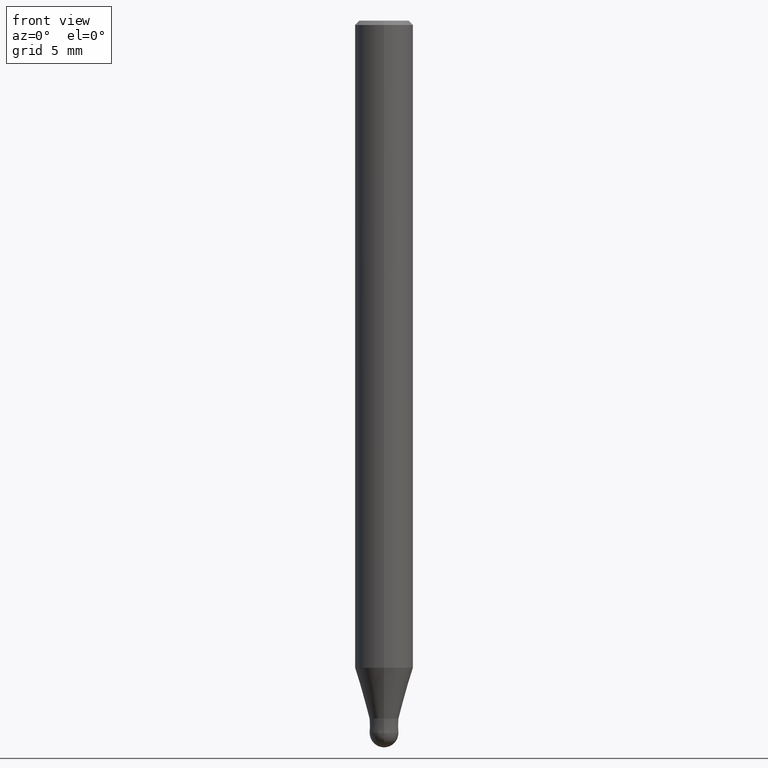
[diagram: clean part render]
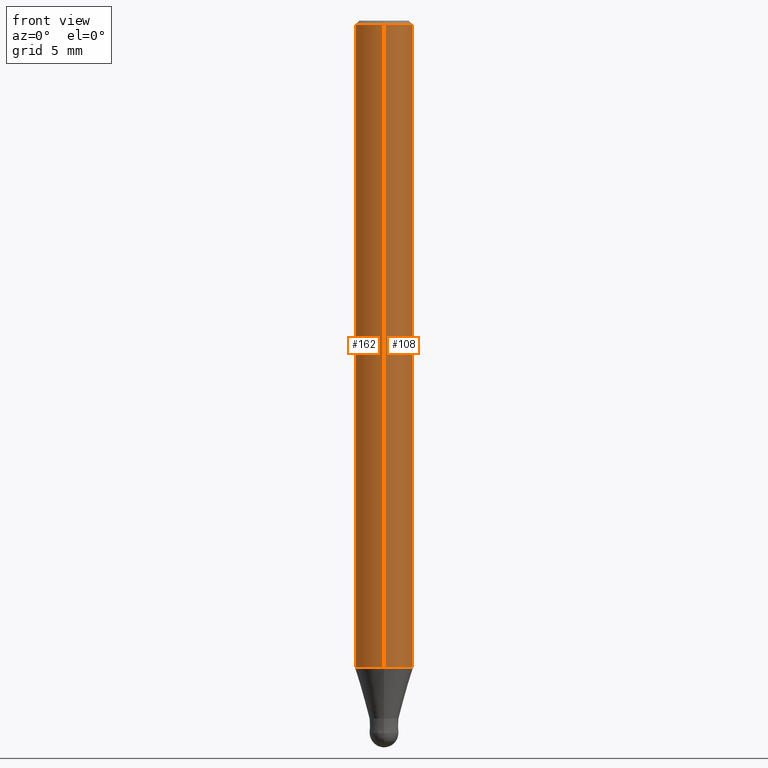
[diagram: same view with one multi-face feature highlighted, each face labeled with its STEP entity id]
A machine part, front view. The highlighted faces form ONE feature: a constant-radius fillet chain: 2 tangent blend faces with common blend radius 2 mm. The faces share edges in the B-rep.
Their STEP definitions:
[1] entity #162 (Cylinder):
#92=VERTEX_POINT('',#219);
#106=EDGE_CURVE('',#168,#172,#233,.T.);
#112=EDGE_CURVE('',#92,#144,#240,.T.);
#144=VERTEX_POINT('',#276);
#162=ADVANCED_FACE('',(#298),#299,.T.);
#164=EDGE_CURVE('',#172,#92,#301,.T.);
#168=VERTEX_POINT('',#305);
#172=VERTEX_POINT('',#309);
#190=EDGE_CURVE('',#168,#144,#330,.T.);
#219=CARTESIAN_POINT('',(0.0,2.0,-0.299999999999997));
#233=LINE('',#369,#370);
#240=LINE('',#380,#381);
#276=CARTESIAN_POINT('',(0.0,2.0,-44.513));
#298=FACE_OUTER_BOUND('',#452,.T.);
#299=CYLINDRICAL_SURFACE('',#453,2.0);
#301=CIRCLE('',#456,2.0);
#305=CARTESIAN_POINT('',(2.44921270764475E-016,-2.0,-44.513));
#309=CARTESIAN_POINT('',(2.44921270764475E-016,-2.0,-0.299999999999997));
#330=CIRCLE('',#491,2.0);
#369=CARTESIAN_POINT('',(2.44921270764475E-016,-2.0,-22.4065));
#370=VECTOR('',#517,1.0);
#380=CARTESIAN_POINT('',(-2.44921270764475E-016,2.0,-22.4065));
#381=VECTOR('',#527,1.0);
#452=EDGE_LOOP('',(#607,#608,#609,#610));
#453=AXIS2_PLACEMENT_3D('',#611,#612,#613);
#456=AXIS2_PLACEMENT_3D('',#614,#615,#616);
#491=AXIS2_PLACEMENT_3D('',#647,#648,#649);
#517=DIRECTION('',(-0.0,-0.0,1.0));
#527=DIRECTION('',(0.0,0.0,-1.0));
#607=ORIENTED_EDGE('',*,*,#112,.T.);
#608=ORIENTED_EDGE('',*,*,#190,.F.);
#609=ORIENTED_EDGE('',*,*,#106,.T.);
#610=ORIENTED_EDGE('',*,*,#164,.T.);
#611=CARTESIAN_POINT('',(0.0,0.0,-22.4065));
#612=DIRECTION('',(-0.0,-0.0,1.0));
#613=DIRECTION('',(0.0,1.0,0.0));
#614=CARTESIAN_POINT('',(0.0,0.0,-0.299999999999997));
#615=DIRECTION('',(0.0,0.0,-1.0));
#616=DIRECTION('',(0.0,1.0,0.0));
#647=CARTESIAN_POINT('',(0.0,0.0,-44.513));
#648=DIRECTION('',(0.0,0.0,-1.0));
#649=DIRECTION('',(0.0,1.0,0.0));
[2] entity #108 (Cylinder):
#92=VERTEX_POINT('',#219);
#106=EDGE_CURVE('',#168,#172,#233,.T.);
#108=ADVANCED_FACE('',(#235),#236,.T.);
#112=EDGE_CURVE('',#92,#144,#240,.T.);
#126=EDGE_CURVE('',#144,#168,#255,.T.);
#142=EDGE_CURVE('',#92,#172,#274,.T.);
#144=VERTEX_POINT('',#276);
#168=VERTEX_POINT('',#305);
#172=VERTEX_POINT('',#309);
#219=CARTESIAN_POINT('',(0.0,2.0,-0.299999999999997));
#233=LINE('',#369,#370);
#235=FACE_OUTER_BOUND('',#372,.T.);
#236=CYLINDRICAL_SURFACE('',#373,2.0);
#240=LINE('',#380,#381);
#255=CIRCLE('',#402,2.0);
#274=CIRCLE('',#425,2.0);
#276=CARTESIAN_POINT('',(0.0,2.0,-44.513));
#305=CARTESIAN_POINT('',(2.44921270764475E-016,-2.0,-44.513));
#309=CARTESIAN_POINT('',(2.44921270764475E-016,-2.0,-0.299999999999997));
#369=CARTESIAN_POINT('',(2.44921270764475E-016,-2.0,-22.4065));
#370=VECTOR('',#517,1.0);
#372=EDGE_LOOP('',(#519,#520,#521,#522));
#373=AXIS2_PLACEMENT_3D('',#523,#524,#525);
#380=CARTESIAN_POINT('',(-2.44921270764475E-016,2.0,-22.4065));
#381=VECTOR('',#527,1.0);
#402=AXIS2_PLACEMENT_3D('',#544,#545,#546);
#425=AXIS2_PLACEMENT_3D('',#573,#574,#575);
#517=DIRECTION('',(-0.0,-0.0,1.0));
#519=ORIENTED_EDGE('',*,*,#112,.F.);
#520=ORIENTED_EDGE('',*,*,#142,.T.);
#521=ORIENTED_EDGE('',*,*,#106,.F.);
#522=ORIENTED_EDGE('',*,*,#126,.F.);
#523=CARTESIAN_POINT('',(0.0,0.0,-22.4065));
#524=DIRECTION('',(-0.0,-0.0,1.0));
#525=DIRECTION('',(0.0,1.0,0.0));
#527=DIRECTION('',(0.0,0.0,-1.0));
#544=CARTESIAN_POINT('',(0.0,0.0,-44.513));
#545=DIRECTION('',(0.0,0.0,-1.0));
#546=DIRECTION('',(0.0,1.0,0.0));
#573=CARTESIAN_POINT('',(0.0,0.0,-0.299999999999997));
#574=DIRECTION('',(0.0,0.0,-1.0));
#575=DIRECTION('',(0.0,1.0,0.0));